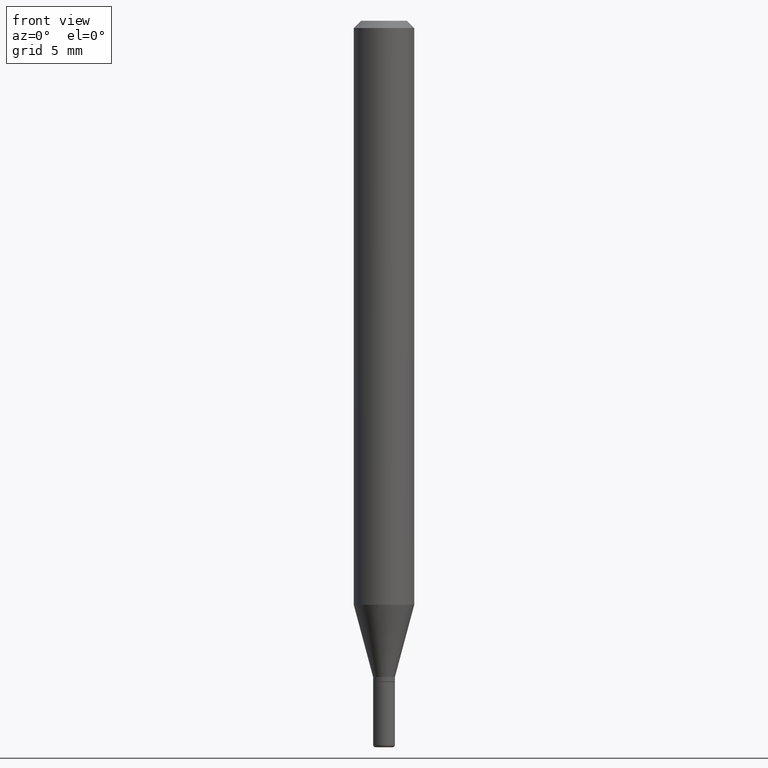
[diagram: clean part render]
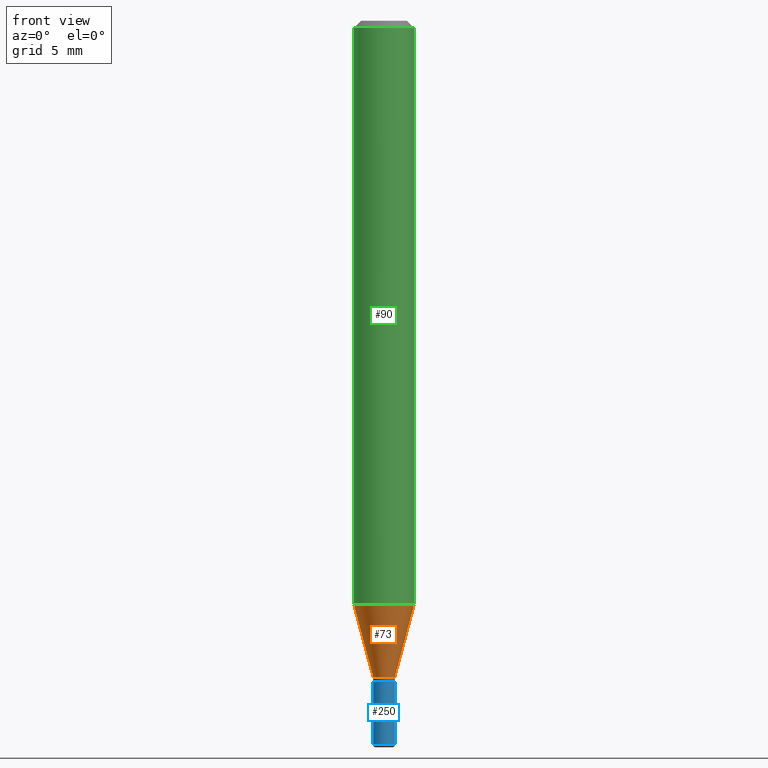
[diagram: same view with three faces highlighted in distinct colors, each labeled with its STEP entity id]
A machine part, front view with three faces highlighted in distinct colors.
Their STEP definitions:

[orange] entity #73 — the highlighted conical surface has half-angle 15 deg.
#1 = DIRECTION ( 'NONE',  ( 0.2588190451025206840, 1.565188264969626504E-15, 0.9659258262890682012 ) ) ;
#7 = CARTESIAN_POINT ( 'NONE',  ( 3.313610232380861411E-29, -4.730957214132463998E-15, -1.355000000000000426 ) ) ;
#33 = CONICAL_SURFACE ( 'NONE', #290, 0.02250000000000007896, 0.2617993877991494078 ) ;
#54 = EDGE_CURVE ( 'NONE', #308, #277, #94, .T. ) ;
#58 = DIRECTION ( 'NONE',  ( 1.000000000000000000, -6.982962677686286432E-15, 0.000000000000000000 ) ) ;
#73 = ADVANCED_FACE ( 'NONE', ( #406 ), #33, .T. ) ;
#79 = VERTEX_POINT ( 'NONE', #333 ) ;
#94 = CIRCLE ( 'NONE', #321, 0.02250000000000007896 ) ;
#97 = CARTESIAN_POINT ( 'NONE',  ( 3.313610232380861411E-29, -4.730957214132463998E-15, -1.355000000000000426 ) ) ;
#100 = DIRECTION ( 'NONE',  ( -0.2588190451025206840, 5.211531920934545520E-15, 0.9659258262890682012 ) ) ;
#129 = ORIENTED_EDGE ( 'NONE', *, *, #324, .T. ) ;
#132 = DIRECTION ( 'NONE',  ( -2.445468806185136597E-29, 3.491481338843145583E-15, 1.000000000000000000 ) ) ;
#133 = VECTOR ( 'NONE', #100, 39.37007874015748854 ) ;
#138 = EDGE_CURVE ( 'NONE', #308, #79, #377, .T. ) ;
#151 = LINE ( 'NONE', #201, #481 ) ;
#160 = VERTEX_POINT ( 'NONE', #502 ) ;
#175 = DIRECTION ( 'NONE',  ( -2.445468806185136597E-29, 3.491481338843145583E-15, 1.000000000000000000 ) ) ;
#177 = CARTESIAN_POINT ( 'NONE',  ( 0.02250000000000007896, -4.888073874380405630E-15, -1.355000000000000426 ) ) ;
#194 = ORIENTED_EDGE ( 'NONE', *, *, #54, .T. ) ;
#201 = CARTESIAN_POINT ( 'NONE',  ( 0.02250000000000007896, -4.888073874380405630E-15, -1.355000000000000426 ) ) ;
#270 = EDGE_CURVE ( 'NONE', #79, #160, #415, .T. ) ;
#277 = VERTEX_POINT ( 'NONE', #177 ) ;
#290 = AXIS2_PLACEMENT_3D ( 'NONE', #97, #175, #58 ) ;
#293 = DIRECTION ( 'NONE',  ( 1.000000000000000000, -6.982962677686286432E-15, 0.000000000000000000 ) ) ;
#308 = VERTEX_POINT ( 'NONE', #511 ) ;
#321 = AXIS2_PLACEMENT_3D ( 'NONE', #7, #132, #293 ) ;
#324 = EDGE_CURVE ( 'NONE', #277, #160, #151, .T. ) ;
#333 = CARTESIAN_POINT ( 'NONE',  ( -0.06250000000000000000, -3.765652574272752576E-15, -1.205717967697245596 ) ) ;
#342 = CARTESIAN_POINT ( 'NONE',  ( -0.02250000000000007896, -4.571085098586440920E-15, -1.355000000000000426 ) ) ;
#351 = ORIENTED_EDGE ( 'NONE', *, *, #138, .F. ) ;
#377 = LINE ( 'NONE', #342, #133 ) ;
#396 = ORIENTED_EDGE ( 'NONE', *, *, #270, .F. ) ;
#406 = FACE_OUTER_BOUND ( 'NONE', #512, .T. ) ;
#415 = CIRCLE ( 'NONE', #421, 0.06250000000000000000 ) ;
#421 = AXIS2_PLACEMENT_3D ( 'NONE', #462, #422, #456 ) ;
#422 = DIRECTION ( 'NONE',  ( -2.445468806185136597E-29, 3.491481338843145583E-15, 1.000000000000000000 ) ) ;
#456 = DIRECTION ( 'NONE',  ( 1.000000000000000000, -6.982962677686270655E-15, 0.000000000000000000 ) ) ;
#462 = CARTESIAN_POINT ( 'NONE',  ( 2.948545679060552191E-29, -4.209741784122815192E-15, -1.205717967697245596 ) ) ;
#481 = VECTOR ( 'NONE', #1, 39.37007874015748854 ) ;
#502 = CARTESIAN_POINT ( 'NONE',  ( 0.06250000000000000000, -4.646176951478207651E-15, -1.205717967697245596 ) ) ;
#511 = CARTESIAN_POINT ( 'NONE',  ( -0.02250000000000007896, -4.168368836429596353E-15, -1.355000000000000426 ) ) ;
#512 = EDGE_LOOP ( 'NONE', ( #351, #194, #129, #396 ) ) ;

[blue] entity #250 — the highlighted cylindrical surface (edge-blend (fillet) strip) has radius 0.5715 mm, axis along (-0, 0, 1).
#10 = EDGE_CURVE ( 'NONE', #320, #467, #14, .T. ) ;
#14 = LINE ( 'NONE', #494, #330 ) ;
#41 = CIRCLE ( 'NONE', #348, 0.02249999999999999917 ) ;
#69 = AXIS2_PLACEMENT_3D ( 'NONE', #303, #221, #507 ) ;
#76 = CIRCLE ( 'NONE', #366, 0.02250000000000017958 ) ;
#81 = VERTEX_POINT ( 'NONE', #492 ) ;
#82 = CARTESIAN_POINT ( 'NONE',  ( 0.02249999999999999917, -4.922988687768834913E-15, -1.364999999999999991 ) ) ;
#102 = FACE_OUTER_BOUND ( 'NONE', #440, .T. ) ;
#104 = CARTESIAN_POINT ( 'NONE',  ( 3.338064920442711836E-29, -4.765872027520893280E-15, -1.364999999999999991 ) ) ;
#118 = EDGE_CURVE ( 'NONE', #81, #200, #505, .T. ) ;
#141 = DIRECTION ( 'NONE',  ( -2.445468806185136877E-29, 3.491481338843145188E-15, 1.000000000000000000 ) ) ;
#185 = CARTESIAN_POINT ( 'NONE',  ( -0.02250000000000008937, 1.598721155460231769E-16, -1.106760395307358334E-30 ) ) ;
#200 = VERTEX_POINT ( 'NONE', #260 ) ;
#221 = DIRECTION ( 'NONE',  ( -2.445468806185136597E-29, 3.491481338843145583E-15, 1.000000000000000000 ) ) ;
#250 = ADVANCED_FACE ( 'NONE', ( #102 ), #457, .T. ) ;
#260 = CARTESIAN_POINT ( 'NONE',  ( -0.02249999999999999917, -4.832946198999675921E-15, -1.364999999999999991 ) ) ;
#268 = CARTESIAN_POINT ( 'NONE',  ( 0.02250000000000017958, -5.376881261818446351E-15, -1.495000000000000329 ) ) ;
#280 = EDGE_CURVE ( 'NONE', #200, #467, #41, .T. ) ;
#286 = DIRECTION ( 'NONE',  ( -2.445468806185136877E-29, 3.491481338843145188E-15, 1.000000000000000000 ) ) ;
#303 = CARTESIAN_POINT ( 'NONE',  ( 0.000000000000000000, 0.000000000000000000, 0.000000000000000000 ) ) ;
#313 = ORIENTED_EDGE ( 'NONE', *, *, #10, .T. ) ;
#319 = ORIENTED_EDGE ( 'NONE', *, *, #280, .F. ) ;
#320 = VERTEX_POINT ( 'NONE', #268 ) ;
#330 = VECTOR ( 'NONE', #286, 39.37007874015748143 ) ;
#335 = DIRECTION ( 'NONE',  ( 1.000000000000000000, -6.982962677686269077E-15, 0.000000000000000000 ) ) ;
#341 = ORIENTED_EDGE ( 'NONE', *, *, #363, .T. ) ;
#348 = AXIS2_PLACEMENT_3D ( 'NONE', #104, #495, #335 ) ;
#361 = DIRECTION ( 'NONE',  ( 1.000000000000000000, -6.982962677686255667E-15, 0.000000000000000000 ) ) ;
#363 = EDGE_CURVE ( 'NONE', #81, #320, #76, .T. ) ;
#366 = AXIS2_PLACEMENT_3D ( 'NONE', #474, #434, #361 ) ;
#386 = ORIENTED_EDGE ( 'NONE', *, *, #118, .F. ) ;
#434 = DIRECTION ( 'NONE',  ( -2.445468806185136597E-29, 3.491481338843145583E-15, 1.000000000000000000 ) ) ;
#440 = EDGE_LOOP ( 'NONE', ( #386, #341, #313, #319 ) ) ;
#457 = CYLINDRICAL_SURFACE ( 'NONE', #69, 0.02250000000000008937 ) ;
#467 = VERTEX_POINT ( 'NONE', #82 ) ;
#474 = CARTESIAN_POINT ( 'NONE',  ( 3.655975865246779683E-29, -5.219764601570503930E-15, -1.495000000000000329 ) ) ;
#489 = VECTOR ( 'NONE', #141, 39.37007874015748143 ) ;
#492 = CARTESIAN_POINT ( 'NONE',  ( -0.02250000000000017958, -4.832946198999673555E-15, -1.495000000000000329 ) ) ;
#494 = CARTESIAN_POINT ( 'NONE',  ( 0.02250000000000008937, -1.571166602479416074E-16, 1.097139774554090038E-30 ) ) ;
#495 = DIRECTION ( 'NONE',  ( -2.445468806185136597E-29, 3.491481338843145583E-15, 1.000000000000000000 ) ) ;
#505 = LINE ( 'NONE', #185, #489 ) ;
#507 = DIRECTION ( 'NONE',  ( 1.000000000000000000, -6.982962677686265922E-15, 4.876176775795936353E-29 ) ) ;

[green] entity #90 — the highlighted cylindrical surface (edge-blend (fillet) strip) has radius 1.5875 mm, axis along (-0, 0, 1).
#28 = VERTEX_POINT ( 'NONE', #329 ) ;
#38 = CARTESIAN_POINT ( 'NONE',  ( -0.06250000000000000000, 4.440892098500626162E-16, -3.074334431409316114E-30 ) ) ;
#46 = ORIENTED_EDGE ( 'NONE', *, *, #140, .F. ) ;
#50 = CYLINDRICAL_SURFACE ( 'NONE', #314, 0.06250000000000000000 ) ;
#71 = CARTESIAN_POINT ( 'NONE',  ( 3.668203209277632395E-31, -5.237222008264614861E-17, -0.01499999999999970281 ) ) ;
#79 = VERTEX_POINT ( 'NONE', #333 ) ;
#90 = ADVANCED_FACE ( 'NONE', ( #453 ), #50, .T. ) ;
#124 = CIRCLE ( 'NONE', #380, 0.06250000000000000000 ) ;
#137 = DIRECTION ( 'NONE',  ( 1.000000000000000000, -6.982962677686266711E-15, 0.000000000000000000 ) ) ;
#140 = EDGE_CURVE ( 'NONE', #28, #235, #124, .T. ) ;
#146 = ORIENTED_EDGE ( 'NONE', *, *, #499, .T. ) ;
#153 = LINE ( 'NONE', #38, #349 ) ;
#157 = CARTESIAN_POINT ( 'NONE',  ( 0.06250000000000000000, -4.364351673553916694E-16, 3.047610484872459871E-30 ) ) ;
#160 = VERTEX_POINT ( 'NONE', #502 ) ;
#235 = VERTEX_POINT ( 'NONE', #347 ) ;
#238 = ORIENTED_EDGE ( 'NONE', *, *, #460, .F. ) ;
#240 = ORIENTED_EDGE ( 'NONE', *, *, #270, .T. ) ;
#254 = DIRECTION ( 'NONE',  ( -2.445468806185136597E-29, 3.491481338843145583E-15, 1.000000000000000000 ) ) ;
#264 = DIRECTION ( 'NONE',  ( -2.445468806185136597E-29, 3.491481338843145583E-15, 1.000000000000000000 ) ) ;
#270 = EDGE_CURVE ( 'NONE', #79, #160, #415, .T. ) ;
#314 = AXIS2_PLACEMENT_3D ( 'NONE', #367, #254, #365 ) ;
#329 = CARTESIAN_POINT ( 'NONE',  ( -0.06250000000000000000, -1.686967792252668322E-15, -0.01499999999999970281 ) ) ;
#333 = CARTESIAN_POINT ( 'NONE',  ( -0.06250000000000000000, -3.765652574272752576E-15, -1.205717967697245596 ) ) ;
#347 = CARTESIAN_POINT ( 'NONE',  ( 0.06250000000000000000, -4.888073874380378612E-16, -0.01499999999999970281 ) ) ;
#349 = VECTOR ( 'NONE', #464, 39.37007874015748143 ) ;
#364 = DIRECTION ( 'NONE',  ( -2.445468806185136877E-29, 3.491481338843145188E-15, 1.000000000000000000 ) ) ;
#365 = DIRECTION ( 'NONE',  ( 1.000000000000000000, -6.982962677686266711E-15, 4.876176775795935793E-29 ) ) ;
#367 = CARTESIAN_POINT ( 'NONE',  ( 0.000000000000000000, 0.000000000000000000, 0.000000000000000000 ) ) ;
#380 = AXIS2_PLACEMENT_3D ( 'NONE', #71, #264, #137 ) ;
#395 = LINE ( 'NONE', #157, #398 ) ;
#398 = VECTOR ( 'NONE', #364, 39.37007874015748143 ) ;
#415 = CIRCLE ( 'NONE', #421, 0.06250000000000000000 ) ;
#421 = AXIS2_PLACEMENT_3D ( 'NONE', #462, #422, #456 ) ;
#422 = DIRECTION ( 'NONE',  ( -2.445468806185136597E-29, 3.491481338843145583E-15, 1.000000000000000000 ) ) ;
#453 = FACE_OUTER_BOUND ( 'NONE', #509, .T. ) ;
#456 = DIRECTION ( 'NONE',  ( 1.000000000000000000, -6.982962677686270655E-15, 0.000000000000000000 ) ) ;
#460 = EDGE_CURVE ( 'NONE', #79, #28, #153, .T. ) ;
#462 = CARTESIAN_POINT ( 'NONE',  ( 2.948545679060552191E-29, -4.209741784122815192E-15, -1.205717967697245596 ) ) ;
#464 = DIRECTION ( 'NONE',  ( -2.445468806185136877E-29, 3.491481338843145188E-15, 1.000000000000000000 ) ) ;
#499 = EDGE_CURVE ( 'NONE', #160, #235, #395, .T. ) ;
#502 = CARTESIAN_POINT ( 'NONE',  ( 0.06250000000000000000, -4.646176951478207651E-15, -1.205717967697245596 ) ) ;
#509 = EDGE_LOOP ( 'NONE', ( #238, #240, #146, #46 ) ) ;